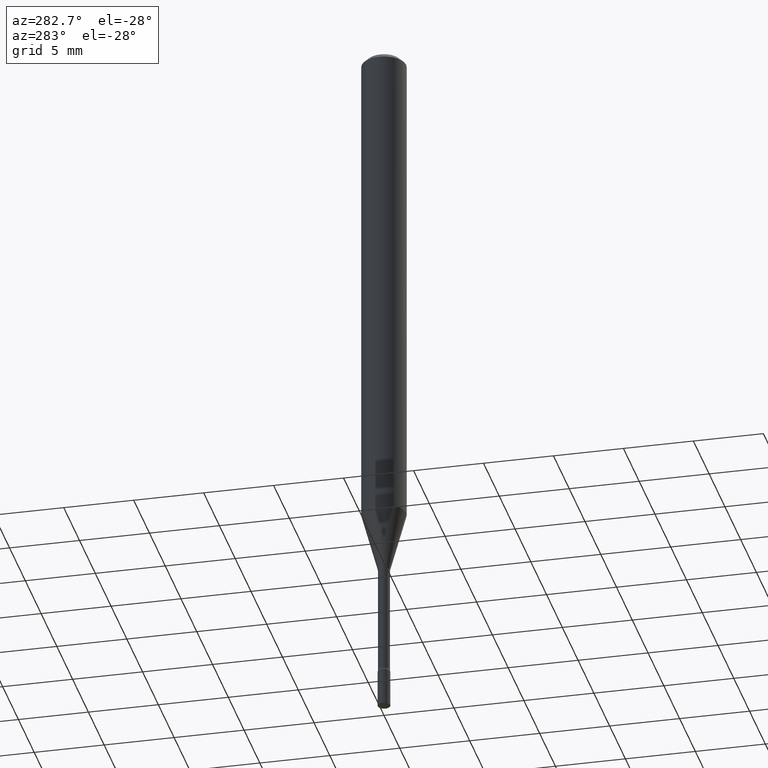
[diagram: clean part render]
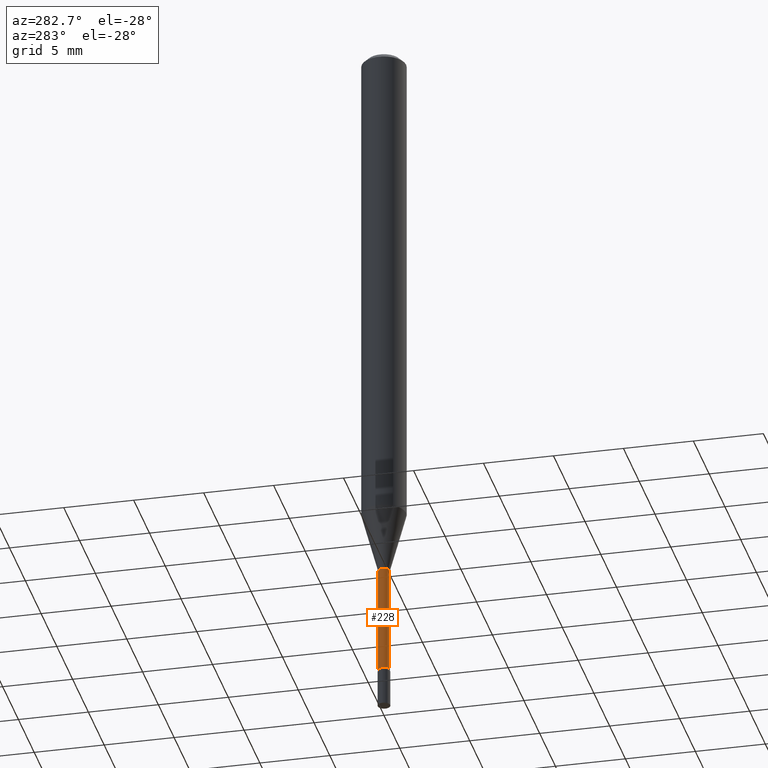
[diagram: same view with one face highlighted and labeled with its STEP entity id]
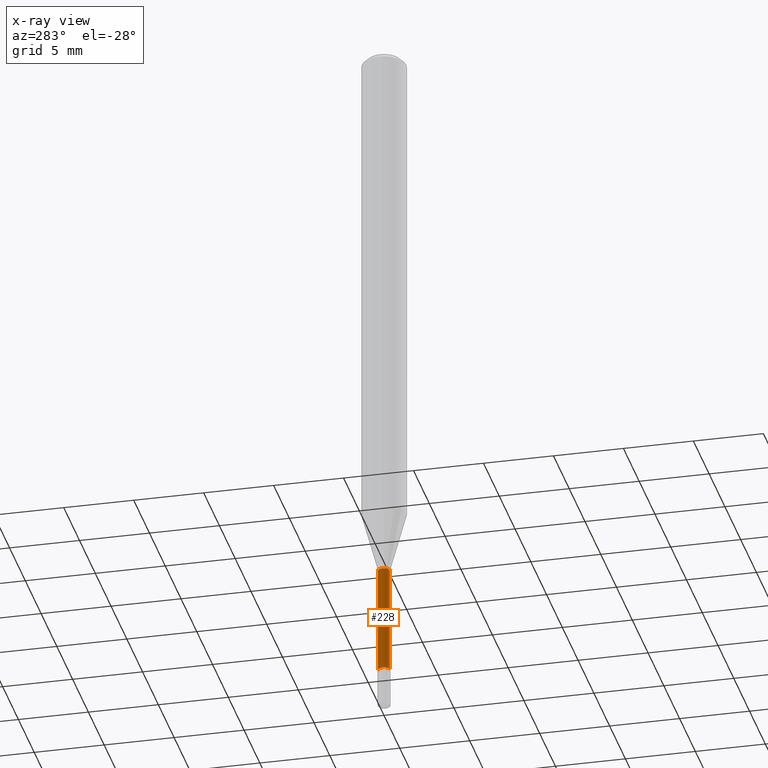
[diagram: x-ray of the same camera — body ghosted, the highlighted face saturated]
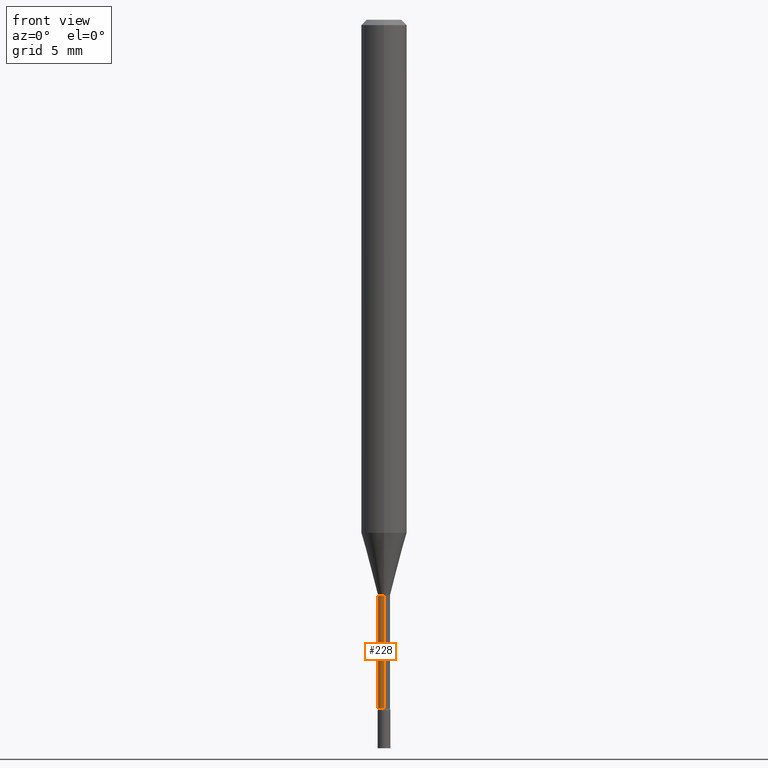
[diagram: same view with one face highlighted and labeled with its STEP entity id]
A machine part, auxiliary view. The second image highlights one B-rep face of the part: STEP entity #228.
The next image is the same camera in x-ray: the body ghosted, the highlighted face saturated — about 0% of this face is hidden behind the body in this view.
A second angle (front view) of the same face is appended — the face is thin or edge-on in the first view.
In plain terms, the highlighted cylindrical surface (edge-blend (fillet) strip) has radius 0.4178 mm, axis along (-0, 0, 1).
Its self-contained STEP definition (entity closure, byte-faithful):
#20 = CARTESIAN_POINT ( 'NONE',  ( -1.148697360479003729E-16, -0.01645000000000552270, -1.581974787463811039 ) ) ;
#32 = EDGE_CURVE ( 'NONE', #198, #276, #333, .T. ) ;
#62 = CARTESIAN_POINT ( 'NONE',  ( 1.168842800325365252E-16, 0.01645000000000000975, -5.743417939807557706E-17 ) ) ;
#66 = EDGE_LOOP ( 'NONE', ( #404, #419, #154, #86 ) ) ;
#86 = ORIENTED_EDGE ( 'NONE', *, *, #32, .F. ) ;
#88 = DIRECTION ( 'NONE',  ( -2.445498038093453295E-29, 3.491439477086658862E-15, 1.000000000000000000 ) ) ;
#106 = VECTOR ( 'NONE', #88, 39.37007874015748143 ) ;
#109 = EDGE_CURVE ( 'NONE', #358, #276, #249, .T. ) ;
#116 = CIRCLE ( 'NONE', #220, 0.01645000000000002363 ) ;
#149 = DIRECTION ( 'NONE',  ( -2.445498038093453295E-29, 3.491439477086658862E-15, 1.000000000000000000 ) ) ;
#150 = CARTESIAN_POINT ( 'NONE',  ( 0.000000000000000000, 0.000000000000000000, 0.000000000000000000 ) ) ;
#151 = AXIS2_PLACEMENT_3D ( 'NONE', #194, #363, #247 ) ;
#154 = ORIENTED_EDGE ( 'NONE', *, *, #109, .T. ) ;
#165 = EDGE_CURVE ( 'NONE', #316, #358, #116, .T. ) ;
#170 = DIRECTION ( 'NONE',  ( -2.445498038093453575E-29, 3.491439477086658862E-15, 1.000000000000000000 ) ) ;
#178 = FACE_OUTER_BOUND ( 'NONE', #66, .T. ) ;
#194 = CARTESIAN_POINT ( 'NONE',  ( 3.868716239056058074E-29, -5.523369224706926142E-15, -1.581974787463811039 ) ) ;
#198 = VERTEX_POINT ( 'NONE', #470 ) ;
#211 = CARTESIAN_POINT ( 'NONE',  ( -1.148697360479391256E-16, -0.01645000000000000975, 5.743417939807557706E-17 ) ) ;
#220 = AXIS2_PLACEMENT_3D ( 'NONE', #450, #170, #330 ) ;
#228 = ADVANCED_FACE ( 'NONE', ( #178 ), #352, .T. ) ;
#231 = CARTESIAN_POINT ( 'NONE',  ( -1.148697360478930266E-16, -0.01645000000000661905, -1.889486607215153047 ) ) ;
#243 = EDGE_CURVE ( 'NONE', #316, #198, #430, .T. ) ;
#247 = DIRECTION ( 'NONE',  ( -6.982962677686265133E-15, -1.000000000000000000, 0.000000000000000000 ) ) ;
#249 = LINE ( 'NONE', #211, #106 ) ;
#259 = DIRECTION ( 'NONE',  ( -6.982962677686265133E-15, -1.000000000000000000, 3.491439477086659256E-15 ) ) ;
#276 = VERTEX_POINT ( 'NONE', #20 ) ;
#297 = VECTOR ( 'NONE', #149, 39.37007874015748143 ) ;
#300 = DIRECTION ( 'NONE',  ( -2.445498038093453575E-29, 3.491439477086658862E-15, 1.000000000000000000 ) ) ;
#316 = VERTEX_POINT ( 'NONE', #466 ) ;
#330 = DIRECTION ( 'NONE',  ( -6.982962677686265133E-15, -1.000000000000000000, 0.000000000000000000 ) ) ;
#333 = CIRCLE ( 'NONE', #151, 0.01644999999999999934 ) ;
#352 = CYLINDRICAL_SURFACE ( 'NONE', #387, 0.01645000000000000975 ) ;
#358 = VERTEX_POINT ( 'NONE', #231 ) ;
#363 = DIRECTION ( 'NONE',  ( -2.445498038093453575E-29, 3.491439477086658862E-15, 1.000000000000000000 ) ) ;
#387 = AXIS2_PLACEMENT_3D ( 'NONE', #150, #300, #259 ) ;
#404 = ORIENTED_EDGE ( 'NONE', *, *, #243, .F. ) ;
#419 = ORIENTED_EDGE ( 'NONE', *, *, #165, .T. ) ;
#430 = LINE ( 'NONE', #62, #297 ) ;
#450 = CARTESIAN_POINT ( 'NONE',  ( 4.620735790948512888E-29, -6.597028131857518324E-15, -1.889486607215153047 ) ) ;
#466 = CARTESIAN_POINT ( 'NONE',  ( 1.206146293953234297E-16, 0.01644999999999342821, -1.889486607215153047 ) ) ;
#470 = CARTESIAN_POINT ( 'NONE',  ( 1.168842800325827475E-16, 0.01644999999999447252, -1.581974787463811039 ) ) ;